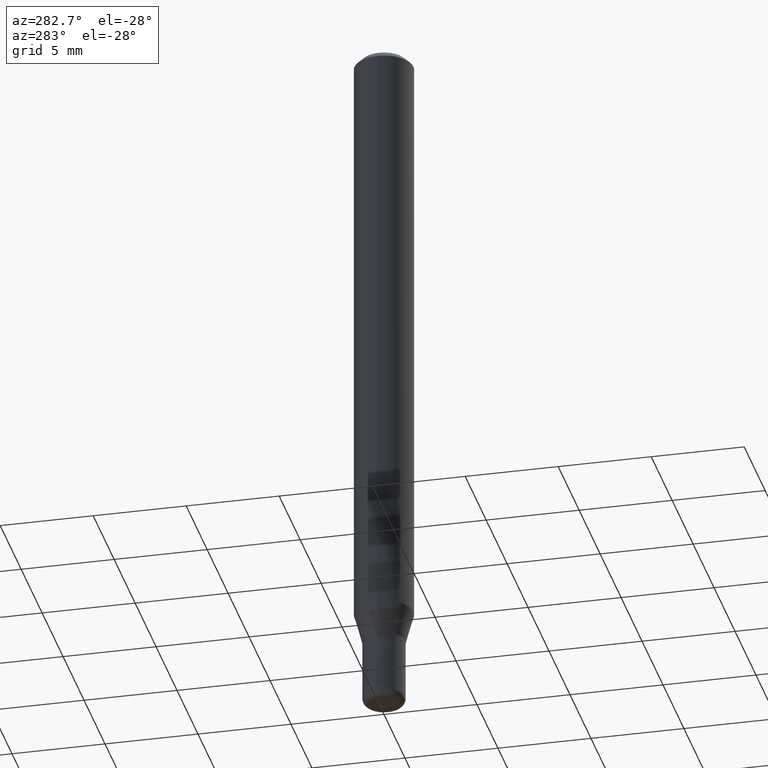
[diagram: clean part render]
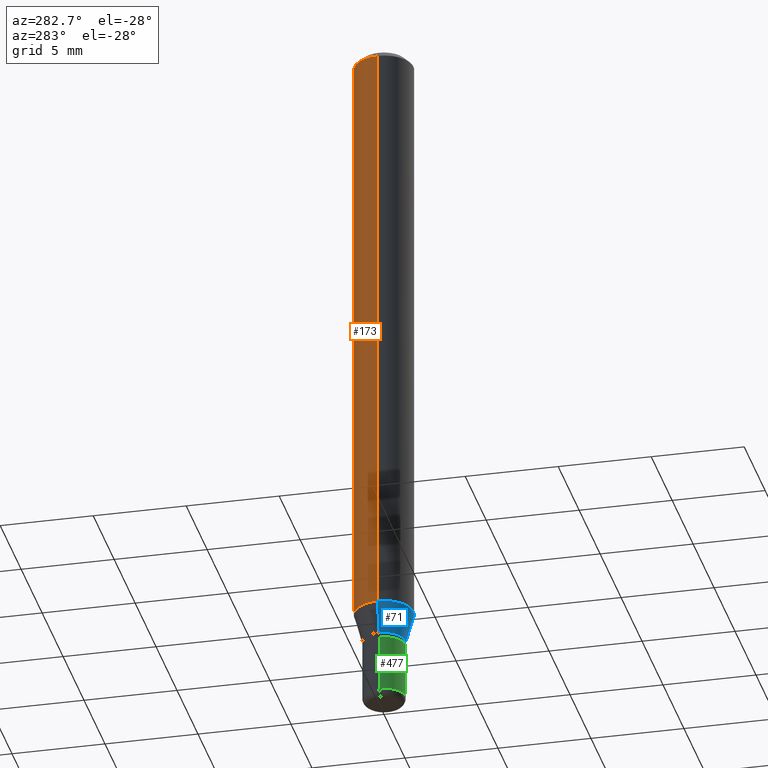
[diagram: same view with three faces highlighted in distinct colors, each labeled with its STEP entity id]
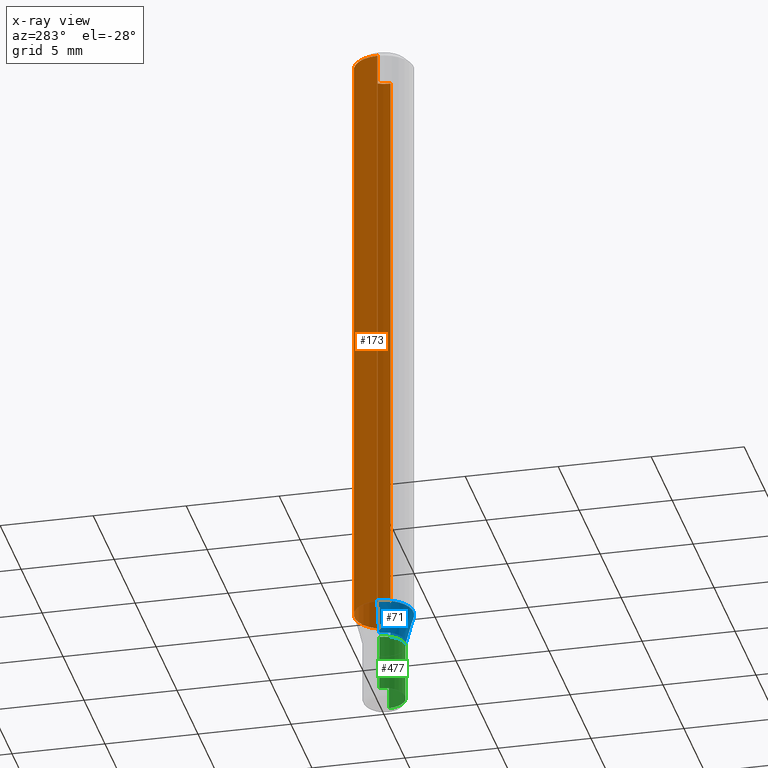
[diagram: x-ray of the same camera — body ghosted, the three highlighted faces saturated]
A machine part, auxiliary view with three faces highlighted in distinct colors.
The next image is the same camera in x-ray (body ghosted, the three faces saturated) — at least one of them is partly hidden behind the body in this view.
Their STEP definitions:

[orange] entity #173 — the highlighted cylindrical surface (edge-blend (fillet) strip) has radius 1.5875 mm, axis along (-0, 0, 1).
#10 = DIRECTION ( 'NONE',  ( -2.445468806185136877E-29, 3.491481338843145188E-15, 1.000000000000000000 ) ) ;
#39 = ORIENTED_EDGE ( 'NONE', *, *, #114, .F. ) ;
#63 = VECTOR ( 'NONE', #10, 39.37007874015748143 ) ;
#65 = CIRCLE ( 'NONE', #117, 0.06250000000000000000 ) ;
#89 = CARTESIAN_POINT ( 'NONE',  ( 0.06250000000000000000, -4.939360630858633822E-15, -1.289689110867545008 ) ) ;
#99 = VERTEX_POINT ( 'NONE', #440 ) ;
#105 = EDGE_CURVE ( 'NONE', #424, #285, #303, .T. ) ;
#114 = EDGE_CURVE ( 'NONE', #486, #424, #128, .T. ) ;
#117 = AXIS2_PLACEMENT_3D ( 'NONE', #467, #420, #146 ) ;
#128 = LINE ( 'NONE', #320, #63 ) ;
#129 = DIRECTION ( 'NONE',  ( -2.445468806185136597E-29, 3.491481338843145583E-15, 1.000000000000000000 ) ) ;
#145 = EDGE_LOOP ( 'NONE', ( #509, #158, #462, #39 ) ) ;
#146 = DIRECTION ( 'NONE',  ( 1.000000000000000000, -6.982962677686262766E-15, 0.000000000000000000 ) ) ;
#158 = ORIENTED_EDGE ( 'NONE', *, *, #431, .T. ) ;
#162 = DIRECTION ( 'NONE',  ( -2.445468806185136597E-29, 3.491481338843145583E-15, 1.000000000000000000 ) ) ;
#163 = DIRECTION ( 'NONE',  ( 1.000000000000000000, -6.982962677686266711E-15, 4.876176775795935793E-29 ) ) ;
#173 = ADVANCED_FACE ( 'NONE', ( #244 ), #241, .T. ) ;
#176 = AXIS2_PLACEMENT_3D ( 'NONE', #444, #129, #163 ) ;
#241 = CYLINDRICAL_SURFACE ( 'NONE', #176, 0.06250000000000000000 ) ;
#244 = FACE_OUTER_BOUND ( 'NONE', #145, .T. ) ;
#246 = DIRECTION ( 'NONE',  ( 1.000000000000000000, -6.982962677686266711E-15, 0.000000000000000000 ) ) ;
#251 = CARTESIAN_POINT ( 'NONE',  ( 0.06250000000000000000, -4.888073874380378612E-16, -0.01499999999999970281 ) ) ;
#272 = CARTESIAN_POINT ( 'NONE',  ( -0.06250000000000000000, 4.440892098500626162E-16, -3.074334431409316114E-30 ) ) ;
#284 = EDGE_CURVE ( 'NONE', #486, #99, #65, .T. ) ;
#285 = VERTEX_POINT ( 'NONE', #379 ) ;
#303 = CIRCLE ( 'NONE', #413, 0.06250000000000000000 ) ;
#315 = VECTOR ( 'NONE', #510, 39.37007874015748143 ) ;
#320 = CARTESIAN_POINT ( 'NONE',  ( 0.06250000000000000000, -4.364351673553916694E-16, 3.047610484872459871E-30 ) ) ;
#355 = LINE ( 'NONE', #272, #315 ) ;
#360 = CARTESIAN_POINT ( 'NONE',  ( 3.668203209277632395E-31, -5.237222008264614861E-17, -0.01499999999999970281 ) ) ;
#379 = CARTESIAN_POINT ( 'NONE',  ( -0.06250000000000000000, -1.833559631942881408E-15, -0.01499999999999970281 ) ) ;
#413 = AXIS2_PLACEMENT_3D ( 'NONE', #360, #162, #246 ) ;
#420 = DIRECTION ( 'NONE',  ( -2.445468806185136597E-29, 3.491481338843145583E-15, 1.000000000000000000 ) ) ;
#424 = VERTEX_POINT ( 'NONE', #251 ) ;
#431 = EDGE_CURVE ( 'NONE', #99, #285, #355, .T. ) ;
#440 = CARTESIAN_POINT ( 'NONE',  ( -0.06250000000000000000, -4.058836253653178747E-15, -1.289689110867545008 ) ) ;
#444 = CARTESIAN_POINT ( 'NONE',  ( 0.000000000000000000, 0.000000000000000000, 0.000000000000000000 ) ) ;
#462 = ORIENTED_EDGE ( 'NONE', *, *, #105, .F. ) ;
#467 = CARTESIAN_POINT ( 'NONE',  ( 3.153894490303225812E-29, -4.502925463503242152E-15, -1.289689110867545008 ) ) ;
#486 = VERTEX_POINT ( 'NONE', #89 ) ;
#509 = ORIENTED_EDGE ( 'NONE', *, *, #284, .T. ) ;
#510 = DIRECTION ( 'NONE',  ( -2.445468806185136877E-29, 3.491481338843145188E-15, 1.000000000000000000 ) ) ;

[blue] entity #71 — the highlighted conical surface has half-angle 15 deg.
#23 = CIRCLE ( 'NONE', #88, 0.06250000000000000000 ) ;
#24 = DIRECTION ( 'NONE',  ( -2.445468806185136597E-29, 3.491481338843145583E-15, 1.000000000000000000 ) ) ;
#41 = DIRECTION ( 'NONE',  ( 0.2588190451025211281, 1.565188264969623940E-15, 0.9659258262890682012 ) ) ;
#71 = ADVANCED_FACE ( 'NONE', ( #423 ), #489, .T. ) ;
#88 = AXIS2_PLACEMENT_3D ( 'NONE', #364, #480, #210 ) ;
#89 = CARTESIAN_POINT ( 'NONE',  ( 0.06250000000000000000, -4.939360630858633822E-15, -1.289689110867545008 ) ) ;
#98 = VECTOR ( 'NONE', #311, 39.37007874015748143 ) ;
#99 = VERTEX_POINT ( 'NONE', #440 ) ;
#107 = EDGE_CURVE ( 'NONE', #99, #486, #23, .T. ) ;
#130 = LINE ( 'NONE', #214, #262 ) ;
#143 = DIRECTION ( 'NONE',  ( 1.000000000000000000, -6.982962677686267499E-15, 0.000000000000000000 ) ) ;
#147 = DIRECTION ( 'NONE',  ( 1.000000000000000000, -6.982962677686267499E-15, 0.000000000000000000 ) ) ;
#148 = CIRCLE ( 'NONE', #500, 0.04500000000000000527 ) ;
#157 = LINE ( 'NONE', #450, #98 ) ;
#179 = CARTESIAN_POINT ( 'NONE',  ( 3.313610232380860851E-29, -4.730957214132463209E-15, -1.355000000000000204 ) ) ;
#181 = ORIENTED_EDGE ( 'NONE', *, *, #401, .T. ) ;
#210 = DIRECTION ( 'NONE',  ( 1.000000000000000000, -6.982962677686262766E-15, 0.000000000000000000 ) ) ;
#214 = CARTESIAN_POINT ( 'NONE',  ( 0.04500000000000000527, -5.045190534628344896E-15, -1.355000000000000204 ) ) ;
#226 = VERTEX_POINT ( 'NONE', #479 ) ;
#262 = VECTOR ( 'NONE', #41, 39.37007874015748143 ) ;
#292 = EDGE_CURVE ( 'NONE', #226, #511, #148, .T. ) ;
#294 = ORIENTED_EDGE ( 'NONE', *, *, #292, .T. ) ;
#297 = ORIENTED_EDGE ( 'NONE', *, *, #107, .F. ) ;
#311 = DIRECTION ( 'NONE',  ( -0.2588190451025211281, 5.211531920934548675E-15, 0.9659258262890682012 ) ) ;
#314 = AXIS2_PLACEMENT_3D ( 'NONE', #344, #506, #147 ) ;
#344 = CARTESIAN_POINT ( 'NONE',  ( 3.313610232380860851E-29, -4.730957214132463209E-15, -1.355000000000000204 ) ) ;
#364 = CARTESIAN_POINT ( 'NONE',  ( 3.153894490303225812E-29, -4.502925463503242152E-15, -1.289689110867545008 ) ) ;
#377 = ORIENTED_EDGE ( 'NONE', *, *, #426, .F. ) ;
#378 = CARTESIAN_POINT ( 'NONE',  ( 0.04500000000000000527, -5.045190534628344896E-15, -1.355000000000000204 ) ) ;
#401 = EDGE_CURVE ( 'NONE', #511, #486, #130, .T. ) ;
#423 = FACE_OUTER_BOUND ( 'NONE', #464, .T. ) ;
#426 = EDGE_CURVE ( 'NONE', #226, #99, #157, .T. ) ;
#440 = CARTESIAN_POINT ( 'NONE',  ( -0.06250000000000000000, -4.058836253653178747E-15, -1.289689110867545008 ) ) ;
#450 = CARTESIAN_POINT ( 'NONE',  ( -0.04500000000000000527, -4.411212983040417053E-15, -1.355000000000000204 ) ) ;
#464 = EDGE_LOOP ( 'NONE', ( #377, #294, #181, #297 ) ) ;
#479 = CARTESIAN_POINT ( 'NONE',  ( -0.04500000000000000527, -4.235024618346798294E-15, -1.355000000000000204 ) ) ;
#480 = DIRECTION ( 'NONE',  ( -2.445468806185136597E-29, 3.491481338843145583E-15, 1.000000000000000000 ) ) ;
#486 = VERTEX_POINT ( 'NONE', #89 ) ;
#489 = CONICAL_SURFACE ( 'NONE', #314, 0.04500000000000000527, 0.2617993877991497964 ) ;
#500 = AXIS2_PLACEMENT_3D ( 'NONE', #179, #24, #143 ) ;
#506 = DIRECTION ( 'NONE',  ( -2.445468806185136597E-29, 3.491481338843145583E-15, 1.000000000000000000 ) ) ;
#511 = VERTEX_POINT ( 'NONE', #378 ) ;

[green] entity #477 — the highlighted cylindrical surface (edge-blend (fillet) strip) has radius 1.143 mm, axis along (-0, 0, 1).
#5 = LINE ( 'NONE', #478, #329 ) ;
#14 = DIRECTION ( 'NONE',  ( 1.000000000000000000, -6.982962677686269077E-15, 0.000000000000000000 ) ) ;
#17 = ORIENTED_EDGE ( 'NONE', *, *, #481, .T. ) ;
#18 = ORIENTED_EDGE ( 'NONE', *, *, #229, .F. ) ;
#25 = CIRCLE ( 'NONE', #385, 0.04499999999999998446 ) ;
#54 = VERTEX_POINT ( 'NONE', #332 ) ;
#60 = EDGE_LOOP ( 'NONE', ( #335, #17, #475, #18 ) ) ;
#108 = CARTESIAN_POINT ( 'NONE',  ( 0.04499999999999998446, -5.499083108677953967E-15, -1.485000000000000098 ) ) ;
#115 = VECTOR ( 'NONE', #202, 39.37007874015748143 ) ;
#119 = CARTESIAN_POINT ( 'NONE',  ( 3.631521177184928138E-29, -5.184849788182071492E-15, -1.485000000000000098 ) ) ;
#120 = EDGE_CURVE ( 'NONE', #153, #421, #5, .T. ) ;
#127 = DIRECTION ( 'NONE',  ( 1.000000000000000000, -6.982962677686266711E-15, 4.876176775795935793E-29 ) ) ;
#132 = DIRECTION ( 'NONE',  ( -2.445468806185136597E-29, 3.491481338843145583E-15, 1.000000000000000000 ) ) ;
#142 = EDGE_CURVE ( 'NONE', #309, #54, #488, .T. ) ;
#153 = VERTEX_POINT ( 'NONE', #518 ) ;
#172 = FACE_OUTER_BOUND ( 'NONE', #60, .T. ) ;
#196 = DIRECTION ( 'NONE',  ( -2.445468806185136597E-29, 3.491481338843145583E-15, 1.000000000000000000 ) ) ;
#202 = DIRECTION ( 'NONE',  ( -2.445468806185136877E-29, 3.491481338843145188E-15, 1.000000000000000000 ) ) ;
#216 = DIRECTION ( 'NONE',  ( 1.000000000000000000, -6.982962677686270655E-15, 0.000000000000000000 ) ) ;
#227 = CIRCLE ( 'NONE', #373, 0.04499999999999999833 ) ;
#229 = EDGE_CURVE ( 'NONE', #421, #54, #227, .T. ) ;
#271 = CARTESIAN_POINT ( 'NONE',  ( -0.04499999999999999833, -4.655616676759437807E-15, -1.364999999999999991 ) ) ;
#287 = CARTESIAN_POINT ( 'NONE',  ( 3.338064920442711836E-29, -4.765872027520893280E-15, -1.364999999999999991 ) ) ;
#309 = VERTEX_POINT ( 'NONE', #108 ) ;
#324 = CARTESIAN_POINT ( 'NONE',  ( 0.04499999999999999140, -3.142333204958819329E-16, 2.194279549108170616E-30 ) ) ;
#328 = CYLINDRICAL_SURFACE ( 'NONE', #442, 0.04499999999999999140 ) ;
#329 = VECTOR ( 'NONE', #404, 39.37007874015748143 ) ;
#332 = CARTESIAN_POINT ( 'NONE',  ( 0.04499999999999999833, -5.080105348016775756E-15, -1.364999999999999991 ) ) ;
#335 = ORIENTED_EDGE ( 'NONE', *, *, #120, .F. ) ;
#373 = AXIS2_PLACEMENT_3D ( 'NONE', #287, #132, #14 ) ;
#385 = AXIS2_PLACEMENT_3D ( 'NONE', #119, #196, #216 ) ;
#404 = DIRECTION ( 'NONE',  ( -2.445468806185136877E-29, 3.491481338843145188E-15, 1.000000000000000000 ) ) ;
#421 = VERTEX_POINT ( 'NONE', #271 ) ;
#442 = AXIS2_PLACEMENT_3D ( 'NONE', #513, #476, #127 ) ;
#475 = ORIENTED_EDGE ( 'NONE', *, *, #142, .T. ) ;
#476 = DIRECTION ( 'NONE',  ( -2.445468806185136597E-29, 3.491481338843145583E-15, 1.000000000000000000 ) ) ;
#477 = ADVANCED_FACE ( 'NONE', ( #172 ), #328, .T. ) ;
#478 = CARTESIAN_POINT ( 'NONE',  ( -0.04499999999999999140, 3.197442310920450225E-16, -2.213520790614707209E-30 ) ) ;
#481 = EDGE_CURVE ( 'NONE', #153, #309, #25, .T. ) ;
#488 = LINE ( 'NONE', #324, #115 ) ;
#513 = CARTESIAN_POINT ( 'NONE',  ( 0.000000000000000000, 0.000000000000000000, 0.000000000000000000 ) ) ;
#518 = CARTESIAN_POINT ( 'NONE',  ( -0.04499999999999998446, -4.655616676759437807E-15, -1.485000000000000098 ) ) ;